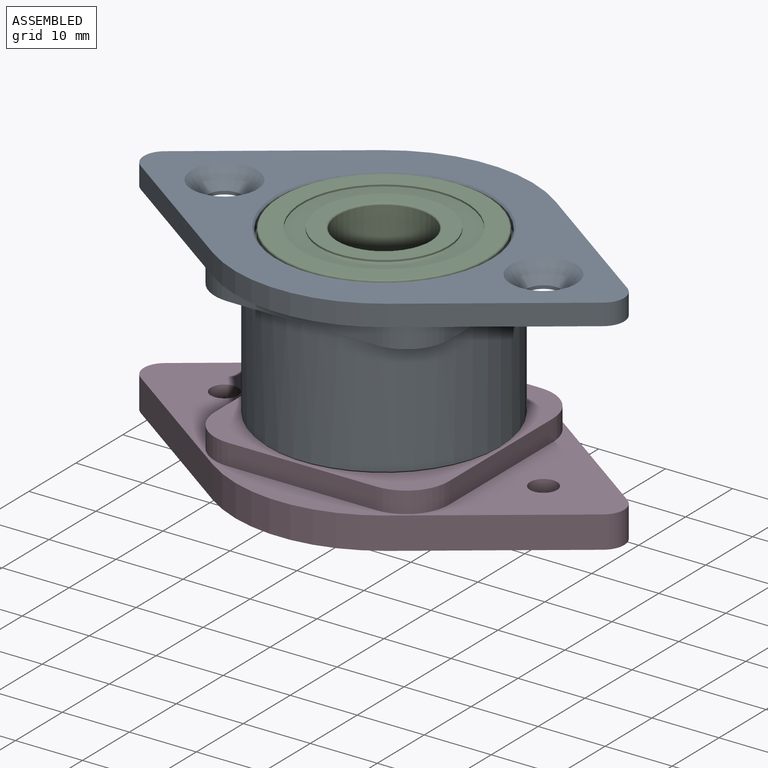
[diagram: assembled view]
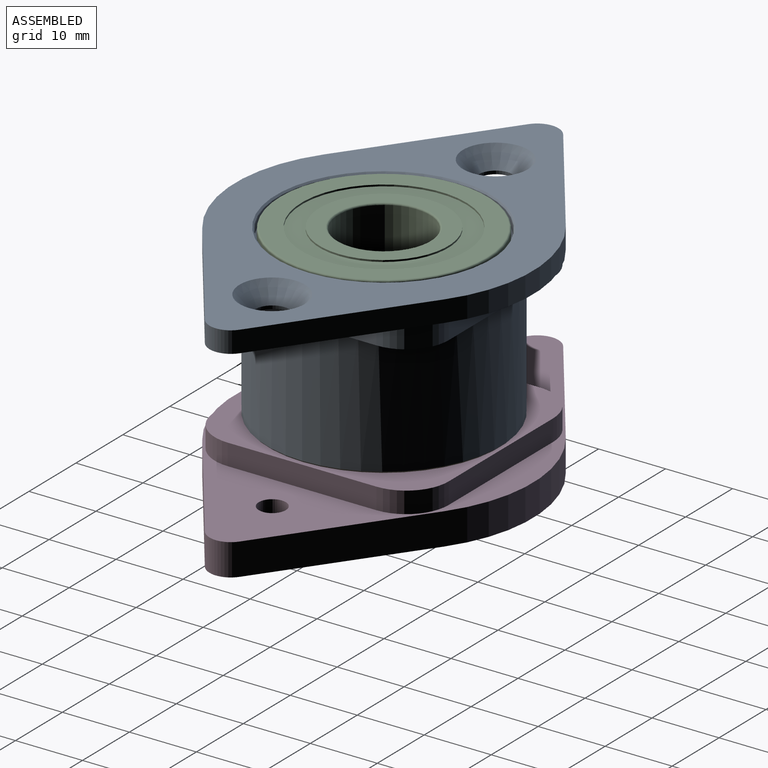
[diagram: assembled view, second angle]
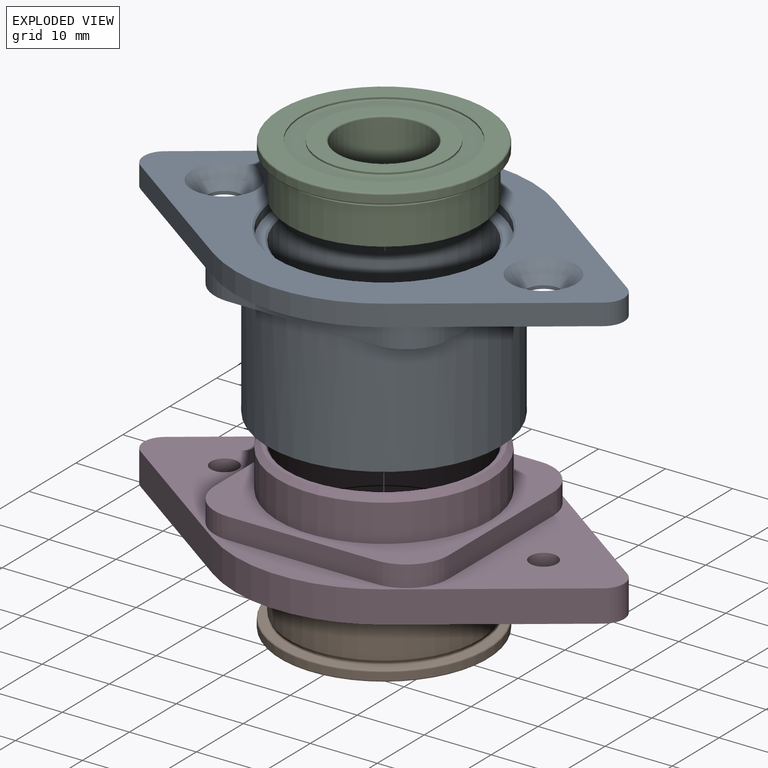
[diagram: exploded view]
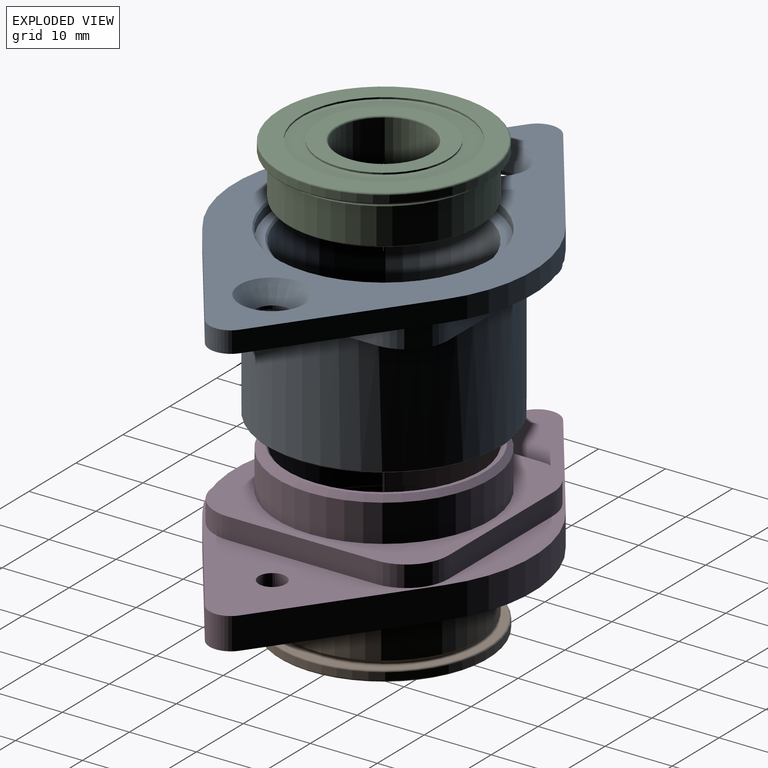
[diagram: exploded view, second angle]
ASSEMBLY  parts=4 mates=7
PART A: 38 faces, bbox 71.7x44.5x25.1 mm
  f0: cone r=15.87mm half-angle=45deg, axis (0,0,-1), area 35.5mm2, adj f11,f30
  f1: cone r=17.21mm half-angle=45deg, axis (0,0,1), area 38.5mm2, adj f12,f30
  f2: cone r=14.27mm half-angle=45deg, axis (0,0,-1), area 32mm2, adj f13,f31
  f3: cone r=14.27mm half-angle=45deg, axis (0,0,1), area 32mm2, adj f13,f37
  f4: cone r=15.88mm half-angle=45deg, axis (0,0,1), area 35.5mm2, adj f9,f25
  f5: cone r=4.89mm half-angle=41deg, axis (0,0,1), area 83.3mm2, adj f6,f25
  f6: cylinder r=2.55mm len=5.11mm, axis (0,0,1), area 7.8mm2, adj f5,f18
  f7: cone r=4.89mm half-angle=41deg, axis (0,0,1), area 83.3mm2, adj f8,f25
  f8: cylinder r=2.55mm len=5.11mm, axis (0,0,1), area 7.8mm2, adj f7,f18
  f9: cylinder r=15.88mm len=31.75mm, axis (0,0,1), area 133.4mm2, adj f4,f37
  f10: cylinder r=3.17mm len=5.16mm, axis (0,0,-1), area 19.1mm2, adj f18,f20,f21,f25
  f11: cylinder r=15.87mm len=31.74mm, axis (0,0,-1), area 687.3mm2, adj f0,f31
  f12: cylinder r=17.46mm len=34.93mm, axis (0,0,1), area 2034.9mm2, adj f1,f14,f15,f16,f17
  f13: cylinder r=14.27mm len=28.55mm, axis (0,0,-1), area 1427.4mm2, adj f2,f3
  f14: plane 17.46x17.46mm, normal (0,0,-1), area 56.8mm2, adj f12,f26,f27,f34
  f15: plane 17.46x17.46mm, normal (0,0,-1), area 56.8mm2, adj f12,f27,f28,f35
  f16: plane 17.46x17.46mm, normal (0,0,-1), area 56.8mm2, adj f12,f28,f29,f32
  f17: plane 17.46x17.46mm, normal (0,0,-1), area 56.8mm2, adj f12,f26,f29,f33
  f18: plane 71.66x44.45mm, normal (0,0,-1), area 755.8mm2, adj f6,f8,f10,f19,f20,f21,f22,f23
  f19: cylinder r=22.23mm len=25.93mm, axis (0,0,-1), area 87.9mm2, adj f18,f20,f24,f25
  f20: plane 21.54x15.47mm, normal (-0.58,0.81,0), area 84.2mm2, adj f10,f18,f19,f25
  f21: plane 21.54x15.47mm, normal (-0.58,-0.81,0), area 84.2mm2, adj f10,f18,f22,f25
  f22: cylinder r=22.23mm len=25.93mm, axis (0,0,-1), area 87.9mm2, adj f18,f21,f23,f25
  f23: plane 21.54x15.47mm, normal (0.58,-0.81,0), area 84.2mm2, adj f18,f22,f25,f36
  f24: plane 21.54x15.47mm, normal (0.58,0.81,0), area 84.2mm2, adj f18,f19,f25,f36
  f25: plane 71.66x44.45mm, normal (0,0,1), area 1014.8mm2, adj f4,f5,f7,f10,f19,f20,f21,f22
  f26: plane 22.23x3.18mm, normal (-1,0,0), area 70.6mm2, adj f14,f17,f18,f33,f34
  f27: plane 22.23x3.18mm, normal (0,1,0), area 70.6mm2, adj f14,f15,f18,f34,f35
  f28: plane 22.23x3.18mm, normal (1,0,0), area 70.6mm2, adj f15,f16,f18,f32,f35
  f29: plane 22.23x3.18mm, normal (0,-1,0), area 70.6mm2, adj f16,f17,f18,f32,f33
  f30: plane 34.43x34.43mm, normal (0,0,-1), area 114.5mm2, adj f0,f1
  f31: plane 31.74x31.74mm, normal (0,0,-1), area 128.3mm2, adj f2,f11
  f32: cylinder r=6.35mm len=6.35mm, axis (0,0,1), area 31.7mm2, adj f16,f18,f28,f29
  f33: cylinder r=6.35mm len=6.35mm, axis (0,0,1), area 31.7mm2, adj f17,f18,f26,f29
  f34: cylinder r=6.35mm len=6.35mm, axis (0,0,1), area 31.7mm2, adj f14,f18,f26,f27
  f35: cylinder r=6.35mm len=6.35mm, axis (0,0,1), area 31.7mm2, adj f15,f18,f27,f28
  f36: cylinder r=3.17mm len=5.16mm, axis (0,0,-1), area 19.1mm2, adj f18,f23,f24,f25
  f37: plane 31.75x31.75mm, normal (0,0,1), area 128.9mm2, adj f3,f9
PART B: 21 faces, bbox 33.7x33.7x7.9 mm
  f0: torus R=14.29mm, axis (0,0,1), area 46.4mm2, adj f10,f17
  f1: torus R=15.31mm, axis (0,0,-1), area 38.2mm2, adj f9,f18
  f2: torus R=14.04mm, axis (0,0,1), area 35mm2, adj f11,f16
  f3: torus R=15.31mm, axis (0,0,1), area 38.2mm2, adj f9,f17
  f4: torus R=7.12mm, axis (0,0,-1), area 17.2mm2, adj f6,f20
  f5: torus R=7.12mm, axis (0,0,1), area 17.2mm2, adj f6,f14
  f6: cylinder r=6.88mm len=13.75mm, axis (0,0,1), area 321.3mm2, adj f4,f5
  f7: cylinder r=9.6mm len=19.2mm, axis (0,0,1), area 15.1mm2, adj f19,f20
  f8: cylinder r=12.29mm len=24.58mm, axis (0,0,1), area 19.3mm2, adj f18,f19
  f9: cylinder r=15.56mm len=31.12mm, axis (0,0,1), area 106.3mm2, adj f1,f3
  f10: cone r=14.29mm half-angle=30deg, axis (0,0,-1), area 38.6mm2, adj f0,f11
  f11: cylinder r=14.29mm len=28.58mm, axis (0,0,1), area 480.3mm2, adj f2,f10
  f12: cylinder r=12.29mm len=24.58mm, axis (0,0,1), area 19.3mm2, adj f15,f16
  f13: cylinder r=9.6mm len=19.2mm, axis (0,0,1), area 15.1mm2, adj f14,f15
  f14: plane 19.2x19.2mm, normal (0,0,-1), area 130.2mm2, adj f5,f13
  f15: plane 24.58x24.58mm, normal (0,0,-1), area 184.7mm2, adj f12,f13
  f16: plane 28.08x28.08mm, normal (0,0,-1), area 144.7mm2, adj f2,f12
  f17: plane 30.62x30.62mm, normal (0,0,-1), area 95.1mm2, adj f0,f3
  f18: plane 30.62x30.62mm, normal (0,0,1), area 262.1mm2, adj f1,f8
  f19: plane 24.58x24.58mm, normal (0,0,1), area 184.7mm2, adj f7,f8
  f20: plane 19.2x19.2mm, normal (0,0,1), area 130.2mm2, adj f4,f7
PART C: same geometry as B
PART D: 30 faces, bbox 71.7x44.5x14.3 mm
  f0: cylinder r=3.17mm len=5.16mm, axis (0,0,-1), area 28.7mm2, adj f11,f13,f14,f18
  f1: cone r=15.07mm half-angle=45deg, axis (0,0,1), area 109.1mm2, adj f5,f24
  f2: cone r=14.52mm half-angle=45deg, axis (0,0,-1), area 32mm2, adj f9,f24
  f3: cone r=14.27mm half-angle=45deg, axis (0,0,1), area 32mm2, adj f9,f23
  f4: cone r=15.86mm half-angle=45deg, axis (0,0,1), area 35.5mm2, adj f8,f18
  f5: cylinder r=15.86mm len=31.72mm, axis (0,0,1), area 553.8mm2, adj f1,f10
  f6: cylinder r=2.02mm len=4.76mm, axis (0,0,1), area 60.4mm2, adj f11,f18
  f7: cylinder r=2.02mm len=4.76mm, axis (0,0,1), area 60.4mm2, adj f11,f18
  f8: cylinder r=15.86mm len=31.72mm, axis (0,0,1), area 133.3mm2, adj f4,f23
  f9: cylinder r=14.27mm len=28.55mm, axis (0,0,-1), area 1094.2mm2, adj f2,f3
  f10: plane 34.93x34.93mm, normal (0,0,-1), area 394.7mm2, adj f5,f19,f20,f21,f22,f25,f26,f27
  f11: plane 71.66x44.45mm, normal (0,0,-1), area 771.1mm2, adj f0,f6,f7,f12,f13,f14,f15,f16
  f12: cylinder r=22.23mm len=25.93mm, axis (0,0,-1), area 131.8mm2, adj f11,f13,f17,f18
  f13: plane 21.54x15.47mm, normal (-0.58,0.81,0), area 126.3mm2, adj f0,f11,f12,f18
  f14: plane 21.54x15.47mm, normal (-0.58,-0.81,0), area 126.3mm2, adj f0,f11,f15,f18
  f15: cylinder r=22.23mm len=25.93mm, axis (0,0,-1), area 131.8mm2, adj f11,f14,f16,f18
  f16: plane 21.54x15.47mm, normal (0.58,-0.81,0), area 126.3mm2, adj f11,f15,f18,f29
  f17: plane 21.54x15.47mm, normal (0.58,0.81,0), area 126.3mm2, adj f11,f12,f18,f29
  f18: plane 71.66x44.45mm, normal (0,0,1), area 1140.7mm2, adj f0,f4,f6,f7,f12,f13,f14,f15
  f19: plane 22.23x3.18mm, normal (-1,0,0), area 70.6mm2, adj f10,f11,f26,f27
  f20: plane 22.23x3.18mm, normal (0,1,0), area 70.6mm2, adj f10,f11,f27,f28
  f21: plane 22.23x3.18mm, normal (1,0,0), area 70.6mm2, adj f10,f11,f25,f28
  f22: plane 22.23x3.18mm, normal (0,-1,0), area 70.6mm2, adj f10,f11,f25,f26
  f23: plane 31.72x31.72mm, normal (0,0,1), area 127.7mm2, adj f3,f8
  f24: plane 30.14x30.14mm, normal (0,0,-1), area 50.6mm2, adj f1,f2
  f25: cylinder r=6.35mm len=6.35mm, axis (0,0,1), area 31.7mm2, adj f10,f11,f21,f22
  f26: cylinder r=6.35mm len=6.35mm, axis (0,0,1), area 31.7mm2, adj f10,f11,f19,f22
  f27: cylinder r=6.35mm len=6.35mm, axis (0,0,1), area 31.7mm2, adj f10,f11,f19,f20
  f28: cylinder r=6.35mm len=6.35mm, axis (0,0,1), area 31.7mm2, adj f10,f11,f20,f21
  f29: cylinder r=3.17mm len=5.16mm, axis (0,0,-1), area 28.7mm2, adj f11,f16,f17,f18
PLACE A at identity fixed
PLACE B rot(axis=(0.65,-0.76,0),180deg) t=(0,0,-27.78)mm
PLACE C t=(0,0,-2.38)mm
PLACE D rot(axis=(0,1,0),180deg) t=(0,0,-29.37)mm
MATE planar A.f0 <-> C.f0  axis (0,0,1) through (0,0,0)mm
MATE cylindrical C.f0 <-> A.f0  axis (0,0,1) through (0,0,-6.1)mm
MATE cylindrical D.f7 <-> A.f5  axis (0,0,-1) through (-23.81,0,-26.99)mm
MATE planar D.f1 <-> B.f0  axis (0,0,-1) through (0,0,-30.16)mm
MATE planar D.f1 <-> A.f0  axis (0,0,1) through (0,0,-23.81)mm
MATE cylindrical D.f1 <-> A.f0  axis (0,0,-1) through (0,0,-21.03)mm
MATE cylindrical D.f1 <-> B.f0  axis (0,0,1) through (0,0,-29.91)mm
